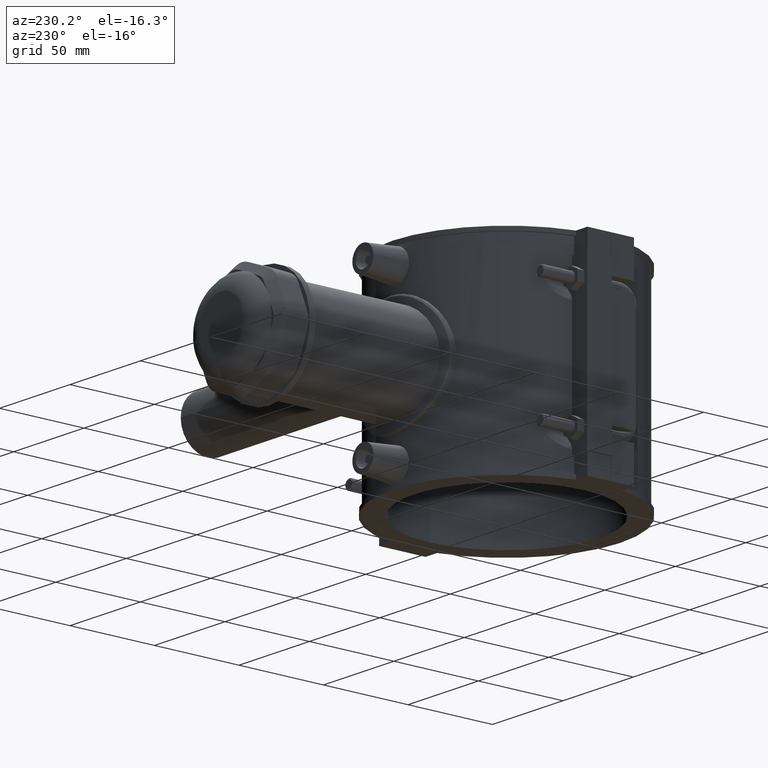
[diagram: clean part render]
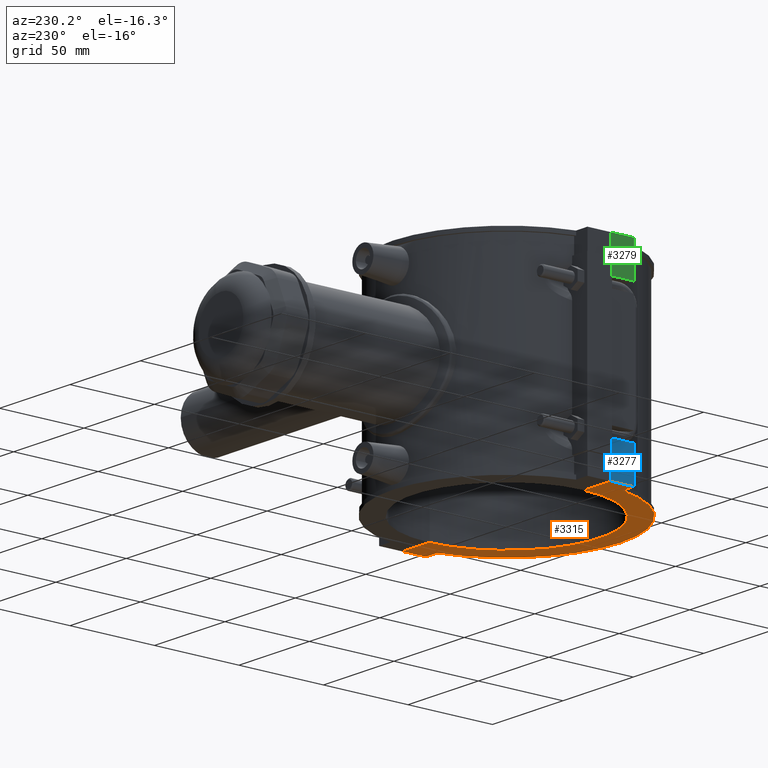
[diagram: same view with three faces highlighted in distinct colors, each labeled with its STEP entity id]
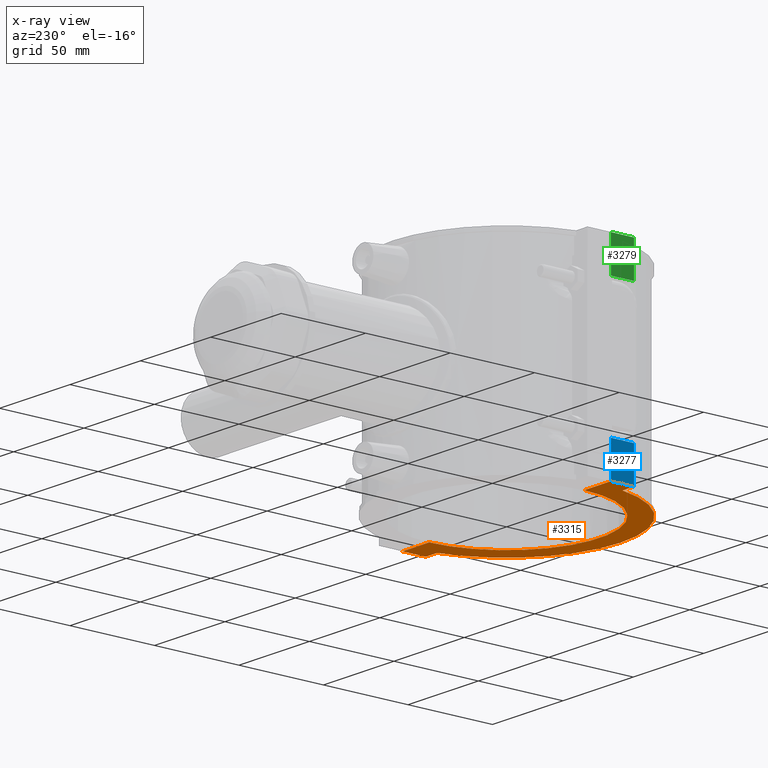
[diagram: x-ray of the same camera — body ghosted, the three highlighted faces saturated]
A machine part, auxiliary view with three faces highlighted in distinct colors.
The next image is the same camera in x-ray (body ghosted, the three faces saturated) — at least one of them is partly hidden behind the body in this view.
Their STEP definitions:

[orange] entity #3315 — the highlighted planar face has unit normal (0, 0, 1).
#124=LINE('',#5523,#411);
#143=LINE('',#5709,#430);
#269=LINE('',#6429,#556);
#310=LINE('',#6719,#597);
#315=LINE('',#6728,#602);
#318=LINE('',#6738,#605);
#411=VECTOR('',#3922,8.09916616612503);
#430=VECTOR('',#3975,8.09916616612502);
#556=VECTOR('',#4309,13.7);
#597=VECTOR('',#4446,19.0000227272774);
#602=VECTOR('',#4455,13.7);
#605=VECTOR('',#4468,19.0000227272775);
#721=PLANE('',#3609);
#772=CIRCLE('',#3426,67.32);
#837=CIRCLE('',#3607,55.);
#1070=FACE_OUTER_BOUND('',#1306,.T.);
#1306=EDGE_LOOP('',(#3013,#3014,#3015,#3016,#3017,#3018,#3019,#3020));
#1470=VERTEX_POINT('',#5452);
#1471=VERTEX_POINT('',#5453);
#1491=VERTEX_POINT('',#5521);
#1520=VERTEX_POINT('',#5708);
#1643=VERTEX_POINT('',#6427);
#1681=VERTEX_POINT('',#6716);
#1682=VERTEX_POINT('',#6718);
#1685=VERTEX_POINT('',#6732);
#1824=EDGE_CURVE('',#1470,#1471,#772,.T.);
#1848=EDGE_CURVE('',#1470,#1491,#124,.T.);
#1883=EDGE_CURVE('',#1520,#1471,#143,.T.);
#2064=EDGE_CURVE('',#1491,#1643,#269,.T.);
#2130=EDGE_CURVE('',#1682,#1681,#310,.T.);
#2135=EDGE_CURVE('',#1681,#1520,#315,.T.);
#2137=EDGE_CURVE('',#1685,#1682,#837,.T.);
#2140=EDGE_CURVE('',#1643,#1685,#318,.T.);
#3013=ORIENTED_EDGE('',*,*,#2130,.T.);
#3014=ORIENTED_EDGE('',*,*,#2135,.T.);
#3015=ORIENTED_EDGE('',*,*,#1883,.T.);
#3016=ORIENTED_EDGE('',*,*,#1824,.F.);
#3017=ORIENTED_EDGE('',*,*,#1848,.T.);
#3018=ORIENTED_EDGE('',*,*,#2064,.T.);
#3019=ORIENTED_EDGE('',*,*,#2140,.T.);
#3020=ORIENTED_EDGE('',*,*,#2137,.T.);
#3315=ADVANCED_FACE('',(#1070),#721,.F.);
#3426=AXIS2_PLACEMENT_3D('',#5454,#3889,#3890);
#3607=AXIS2_PLACEMENT_3D('',#6733,#4461,#4462);
#3609=AXIS2_PLACEMENT_3D('',#6737,#4466,#4467);
#3889=DIRECTION('center_axis',(0.,0.,1.));
#3890=DIRECTION('ref_axis',(-0.97891910032494,-0.204248366013072,0.));
#3922=DIRECTION('',(-1.,0.,0.));
#3975=DIRECTION('',(-1.,0.,0.));
#4309=DIRECTION('',(0.,1.,0.));
#4446=DIRECTION('',(1.,5.27449705533489E-17,0.));
#4455=DIRECTION('',(0.,-1.,0.));
#4461=DIRECTION('center_axis',(0.,0.,1.));
#4462=DIRECTION('ref_axis',(-1.,0.,0.));
#4466=DIRECTION('center_axis',(0.,0.,1.));
#4467=DIRECTION('ref_axis',(1.,0.,0.));
#4468=DIRECTION('',(1.,5.27449705533489E-17,0.));
#5452=CARTESIAN_POINT('',(-65.900833833875,-13.75,-59.));
#5453=CARTESIAN_POINT('',(65.900833833875,-13.75,-59.));
#5454=CARTESIAN_POINT('Origin',(0.,0.,-59.));
#5521=CARTESIAN_POINT('',(-74.,-13.75,-59.));
#5523=CARTESIAN_POINT('',(-74.,-13.75,-59.));
#5708=CARTESIAN_POINT('',(74.,-13.75,-59.));
#5709=CARTESIAN_POINT('',(64.5518202686803,-13.75,-59.));
#6427=CARTESIAN_POINT('',(-74.,-0.0500000000000078,-59.));
#6429=CARTESIAN_POINT('',(-74.,13.75,-59.));
#6716=CARTESIAN_POINT('',(74.,-0.05,-59.));
#6718=CARTESIAN_POINT('',(54.9999772727226,-0.050000000000001,-59.));
#6719=CARTESIAN_POINT('',(-72.0235519553924,-0.0500000000000077,-59.));
#6728=CARTESIAN_POINT('',(74.,-13.75,-59.));
#6732=CARTESIAN_POINT('',(-54.9999772727226,-0.0500000000000068,-59.));
#6733=CARTESIAN_POINT('Origin',(0.,0.,-59.));
#6737=CARTESIAN_POINT('Origin',(-70.0471039107848,-1.214036024795E-16,-59.));
#6738=CARTESIAN_POINT('',(-72.0235519553924,-0.0500000000000077,-59.));

[blue] entity #3277 — the highlighted planar face has unit normal (-1, 0, 0).
#123=LINE('',#5522,#410);
#265=LINE('',#6420,#552);
#268=LINE('',#6428,#555);
#269=LINE('',#6429,#556);
#410=VECTOR('',#3921,20.6);
#552=VECTOR('',#4299,13.7);
#555=VECTOR('',#4308,20.6);
#556=VECTOR('',#4309,13.7);
#697=PLANE('',#3554);
#1032=FACE_OUTER_BOUND('',#1257,.T.);
#1257=EDGE_LOOP('',(#2826,#2827,#2828,#2829));
#1490=VERTEX_POINT('',#5519);
#1491=VERTEX_POINT('',#5521);
#1641=VERTEX_POINT('',#6418);
#1643=VERTEX_POINT('',#6427);
#1847=EDGE_CURVE('',#1491,#1490,#123,.T.);
#2059=EDGE_CURVE('',#1490,#1641,#265,.T.);
#2063=EDGE_CURVE('',#1641,#1643,#268,.T.);
#2064=EDGE_CURVE('',#1491,#1643,#269,.T.);
#2826=ORIENTED_EDGE('',*,*,#2059,.T.);
#2827=ORIENTED_EDGE('',*,*,#2063,.T.);
#2828=ORIENTED_EDGE('',*,*,#2064,.F.);
#2829=ORIENTED_EDGE('',*,*,#1847,.T.);
#3277=ADVANCED_FACE('',(#1032),#697,.T.);
#3554=AXIS2_PLACEMENT_3D('',#6426,#4306,#4307);
#3921=DIRECTION('',(0.,0.,1.));
#4299=DIRECTION('',(0.,1.,0.));
#4306=DIRECTION('center_axis',(-1.,0.,0.));
#4307=DIRECTION('ref_axis',(0.,-1.,0.));
#4308=DIRECTION('',(0.,0.,-1.));
#4309=DIRECTION('',(0.,1.,0.));
#5519=CARTESIAN_POINT('',(-74.,-13.75,-38.4));
#5521=CARTESIAN_POINT('',(-74.,-13.75,-59.));
#5522=CARTESIAN_POINT('',(-74.,-13.75,0.));
#6418=CARTESIAN_POINT('',(-74.,-0.0500000000000078,-38.4));
#6420=CARTESIAN_POINT('',(-74.,3.33066907387547E-15,-38.4));
#6426=CARTESIAN_POINT('Origin',(-74.,13.75,0.));
#6427=CARTESIAN_POINT('',(-74.,-0.0500000000000078,-59.));
#6428=CARTESIAN_POINT('',(-74.,-0.0500000000000078,-29.5));
#6429=CARTESIAN_POINT('',(-74.,13.75,-59.));

[green] entity #3279 — the highlighted planar face has unit normal (-1, 0, 0).
#119=LINE('',#5484,#406);
#258=LINE('',#6405,#545);
#271=LINE('',#6434,#558);
#272=LINE('',#6435,#559);
#406=VECTOR('',#3913,20.6);
#545=VECTOR('',#4282,13.7);
#558=VECTOR('',#4315,13.7);
#559=VECTOR('',#4316,20.6);
#699=PLANE('',#3556);
#1034=FACE_OUTER_BOUND('',#1259,.T.);
#1259=EDGE_LOOP('',(#2834,#2835,#2836,#2837));
#1482=VERTEX_POINT('',#5481);
#1483=VERTEX_POINT('',#5483);
#1638=VERTEX_POINT('',#6404);
#1644=VERTEX_POINT('',#6433);
#1839=EDGE_CURVE('',#1483,#1482,#119,.T.);
#2051=EDGE_CURVE('',#1638,#1483,#258,.T.);
#2066=EDGE_CURVE('',#1644,#1482,#271,.T.);
#2067=EDGE_CURVE('',#1644,#1638,#272,.T.);
#2834=ORIENTED_EDGE('',*,*,#2051,.T.);
#2835=ORIENTED_EDGE('',*,*,#1839,.T.);
#2836=ORIENTED_EDGE('',*,*,#2066,.F.);
#2837=ORIENTED_EDGE('',*,*,#2067,.T.);
#3279=ADVANCED_FACE('',(#1034),#699,.T.);
#3556=AXIS2_PLACEMENT_3D('',#6432,#4313,#4314);
#3913=DIRECTION('',(0.,0.,1.));
#4282=DIRECTION('',(0.,-1.,0.));
#4313=DIRECTION('center_axis',(-1.,0.,0.));
#4314=DIRECTION('ref_axis',(0.,-1.,0.));
#4315=DIRECTION('',(0.,-1.,0.));
#4316=DIRECTION('',(0.,0.,-1.));
#5481=CARTESIAN_POINT('',(-74.,-13.75,59.));
#5483=CARTESIAN_POINT('',(-74.,-13.75,38.4));
#5484=CARTESIAN_POINT('',(-74.,-13.75,0.));
#6404=CARTESIAN_POINT('',(-74.,-0.0500000000000078,38.4));
#6405=CARTESIAN_POINT('',(-74.,3.33066907387547E-15,38.4));
#6432=CARTESIAN_POINT('Origin',(-74.,13.75,0.));
#6433=CARTESIAN_POINT('',(-74.,-0.0500000000000078,59.));
#6434=CARTESIAN_POINT('',(-74.,13.75,59.));
#6435=CARTESIAN_POINT('',(-74.,-0.0500000000000078,-29.5));